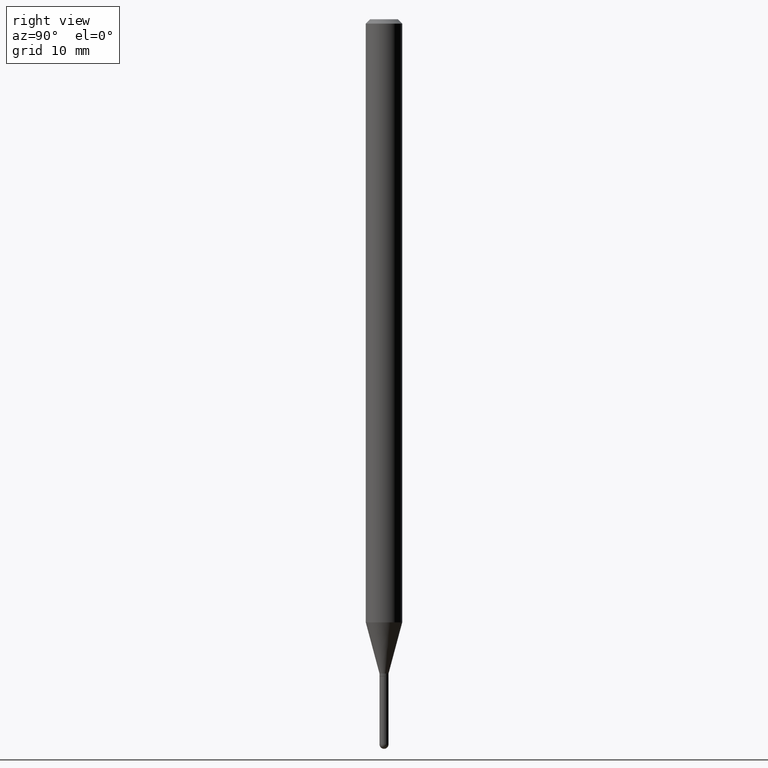
[diagram: clean part render]
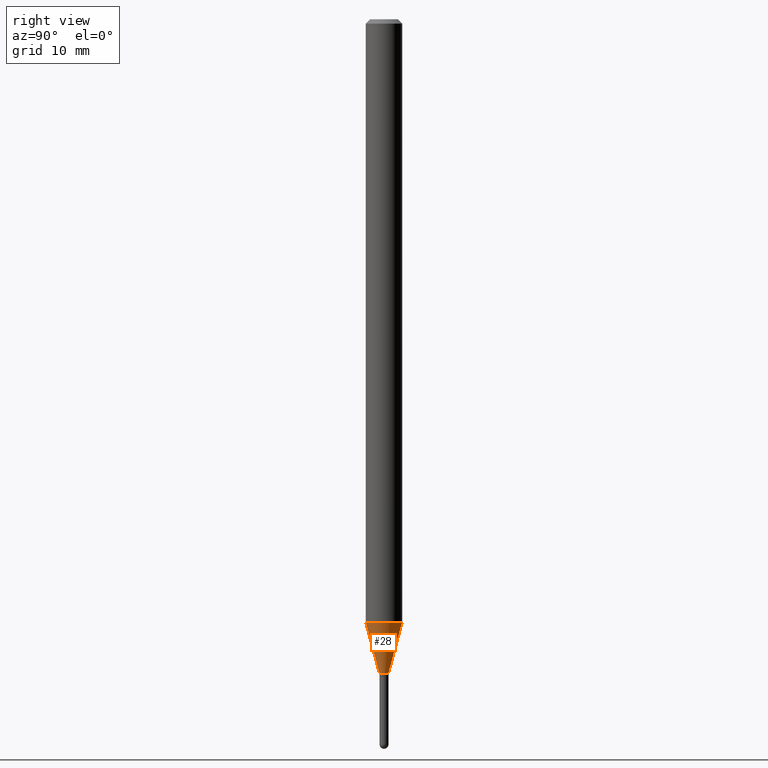
[diagram: same view with one face highlighted and labeled with its STEP entity id]
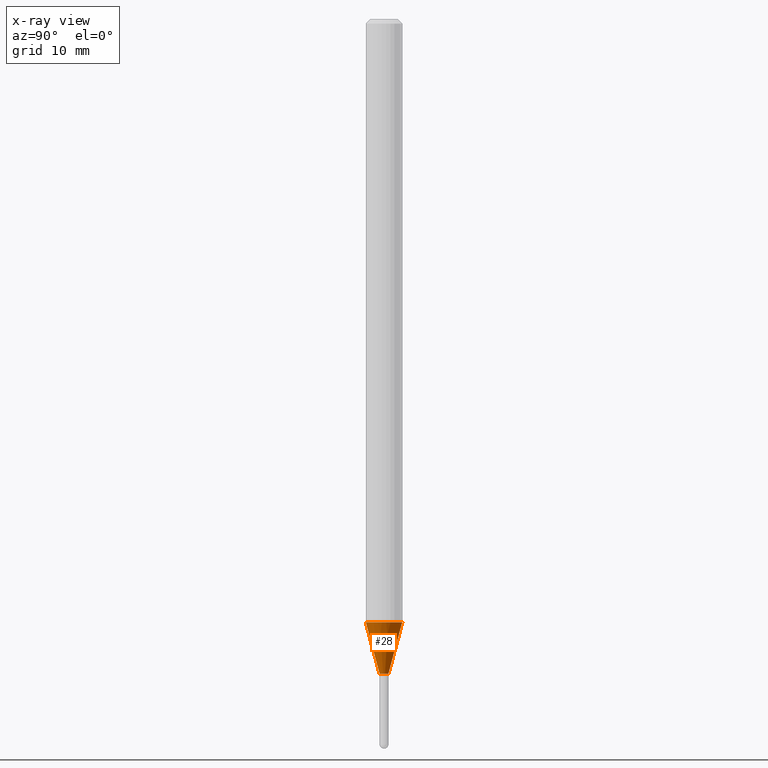
[diagram: x-ray of the same camera — body ghosted, the highlighted face saturated]
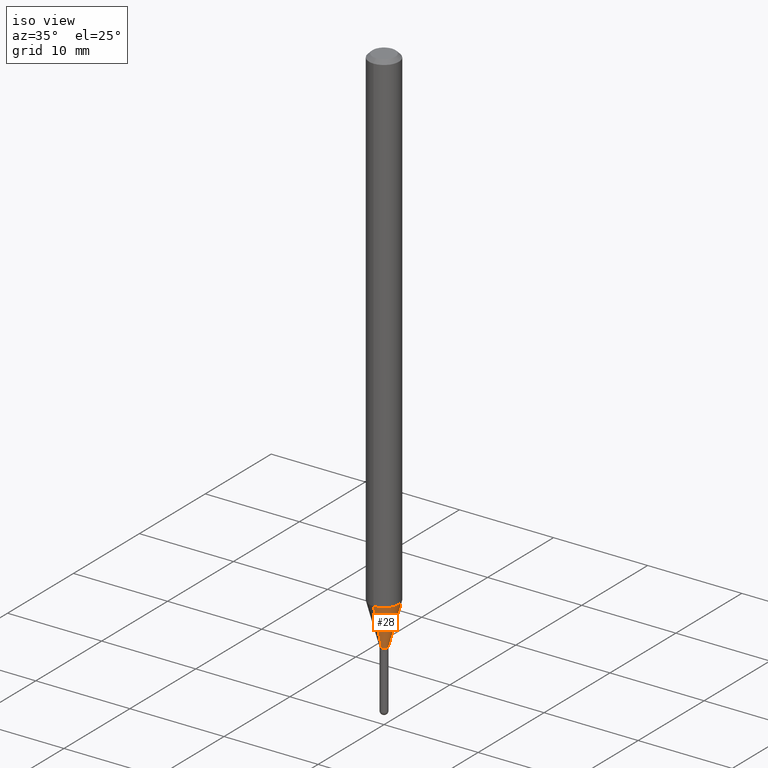
[diagram: same view with one face highlighted and labeled with its STEP entity id]
A machine part, right view. The second image highlights one B-rep face of the part: STEP entity #28.
The next image is the same camera in x-ray: the body ghosted, the highlighted face saturated — about 0% of this face is hidden behind the body in this view.
A second angle (iso view) of the same face is appended — the face is thin or edge-on in the first view.
In plain terms, the highlighted conical surface has half-angle 15 deg.
Its self-contained STEP definition (entity closure, byte-faithful):
#9 = DIRECTION ( 'NONE',  ( -2.445469197505109755E-29, 3.491480778450671606E-15, 1.000000000000000000 ) ) ;
#28 = ADVANCED_FACE ( 'NONE', ( #288 ), #381, .T. ) ;
#45 = EDGE_LOOP ( 'NONE', ( #64, #295, #353, #387 ) ) ;
#49 = DIRECTION ( 'NONE',  ( -6.982962677686265922E-15, -1.000000000000000000, 4.370956789862821150E-15 ) ) ;
#50 = DIRECTION ( 'NONE',  ( -2.445469197505109755E-29, 3.491480778450671606E-15, 1.000000000000000000 ) ) ;
#64 = ORIENTED_EDGE ( 'NONE', *, *, #349, .T. ) ;
#67 = VERTEX_POINT ( 'NONE', #123 ) ;
#89 = CARTESIAN_POINT ( 'NONE',  ( 4.440892098501129061E-16, 0.06249999999999276967, -2.066593612044262507 ) ) ;
#123 = CARTESIAN_POINT ( 'NONE',  ( 2.771116669464905946E-16, 0.01549999999999181893, -2.241999999999999993 ) ) ;
#126 = EDGE_CURVE ( 'NONE', #426, #351, #148, .T. ) ;
#148 = CIRCLE ( 'NONE', #157, 0.06250000000000000000 ) ;
#150 = CARTESIAN_POINT ( 'NONE',  ( -1.082359215040798499E-16, -0.01550000000000747828, -2.241999999999999993 ) ) ;
#157 = AXIS2_PLACEMENT_3D ( 'NONE', #408, #50, #49 ) ;
#175 = VECTOR ( 'NONE', #512, 39.37007874015748143 ) ;
#189 = CARTESIAN_POINT ( 'NONE',  ( -1.082359215040798499E-16, -0.01550000000000747828, -2.241999999999999993 ) ) ;
#191 = CARTESIAN_POINT ( 'NONE',  ( -4.364351673553412316E-16, -0.06250000000000721645, -2.066593612044262063 ) ) ;
#224 = VERTEX_POINT ( 'NONE', #150 ) ;
#278 = DIRECTION ( 'NONE',  ( -1.807323732225332900E-15, -0.2588190451025185190, 0.9659258262890689783 ) ) ;
#283 = DIRECTION ( 'NONE',  ( -2.445469197505109755E-29, 3.491480778450671606E-15, 1.000000000000000000 ) ) ;
#288 = FACE_OUTER_BOUND ( 'NONE', #45, .T. ) ;
#295 = ORIENTED_EDGE ( 'NONE', *, *, #481, .T. ) ;
#349 = EDGE_CURVE ( 'NONE', #224, #67, #501, .T. ) ;
#351 = VERTEX_POINT ( 'NONE', #89 ) ;
#353 = ORIENTED_EDGE ( 'NONE', *, *, #126, .F. ) ;
#356 = CARTESIAN_POINT ( 'NONE',  ( 1.101341240428678394E-16, 0.01549999999999182067, -2.241999999999999993 ) ) ;
#381 = CONICAL_SURFACE ( 'NONE', #413, 0.01549999999999964947, 0.2617993877991506291 ) ;
#387 = ORIENTED_EDGE ( 'NONE', *, *, #496, .F. ) ;
#396 = LINE ( 'NONE', #189, #464 ) ;
#408 = CARTESIAN_POINT ( 'NONE',  ( 5.053791022015068069E-29, -7.215471873321485568E-15, -2.066593612044262507 ) ) ;
#409 = CARTESIAN_POINT ( 'NONE',  ( 5.482741940806456285E-29, -7.827899905286405489E-15, -2.241999999999999993 ) ) ;
#413 = AXIS2_PLACEMENT_3D ( 'NONE', #494, #9, #483 ) ;
#426 = VERTEX_POINT ( 'NONE', #191 ) ;
#435 = LINE ( 'NONE', #356, #175 ) ;
#445 = DIRECTION ( 'NONE',  ( -6.982962677686265922E-15, -1.000000000000000000, 0.000000000000000000 ) ) ;
#464 = VECTOR ( 'NONE', #278, 39.37007874015748854 ) ;
#481 = EDGE_CURVE ( 'NONE', #67, #351, #435, .T. ) ;
#483 = DIRECTION ( 'NONE',  ( -6.982962677686265922E-15, -1.000000000000000000, 0.000000000000000000 ) ) ;
#494 = CARTESIAN_POINT ( 'NONE',  ( 5.482741940806456285E-29, -7.827899905286405489E-15, -2.241999999999999993 ) ) ;
#496 = EDGE_CURVE ( 'NONE', #224, #426, #396, .T. ) ;
#497 = AXIS2_PLACEMENT_3D ( 'NONE', #409, #283, #445 ) ;
#501 = CIRCLE ( 'NONE', #497, 0.01549999999999964947 ) ;
#512 = DIRECTION ( 'NONE',  ( 1.839019923739602682E-15, 0.2588190451025252914, 0.9659258262890670910 ) ) ;